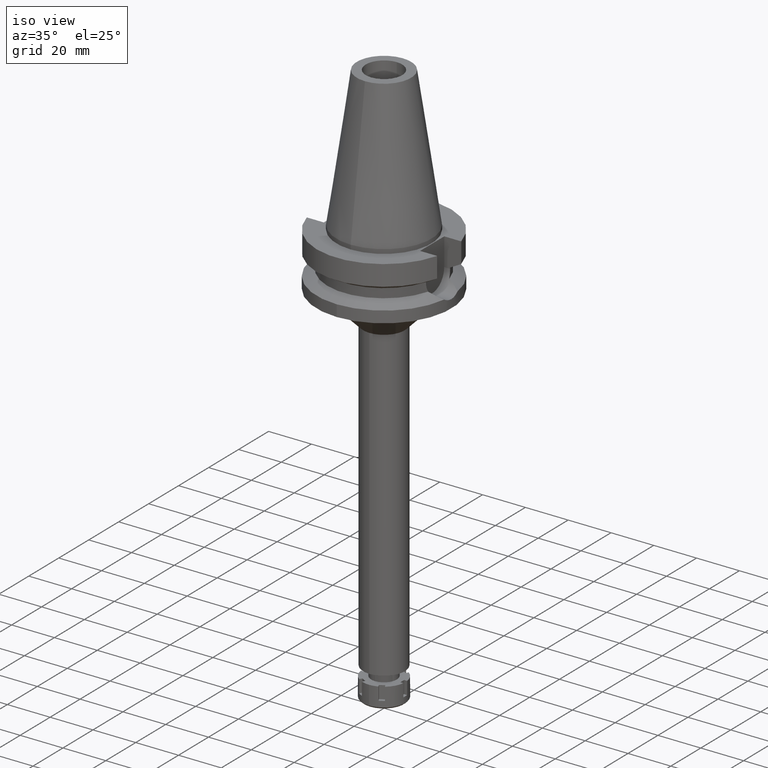
[diagram: clean part render]
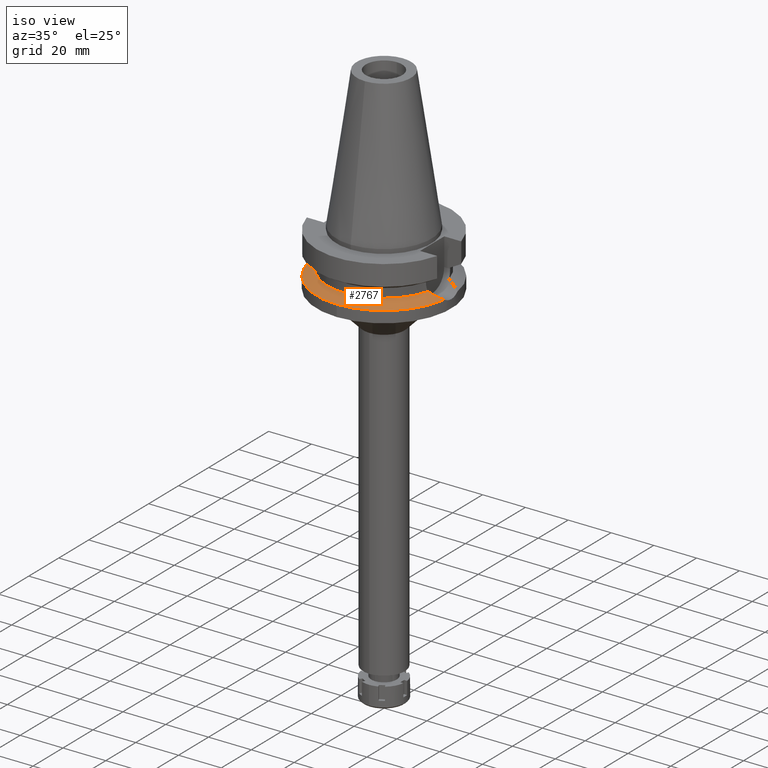
[diagram: same view with one face highlighted and labeled with its STEP entity id]
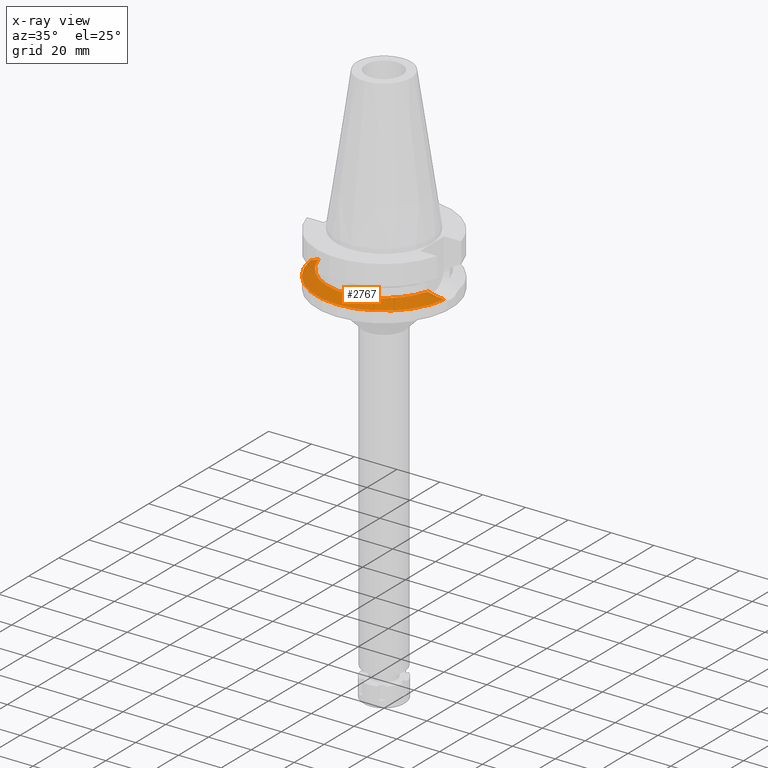
[diagram: x-ray of the same camera — body ghosted, the highlighted face saturated]
A machine part, iso view. The second image highlights one B-rep face of the part: STEP entity #2767.
The next image is the same camera in x-ray: the body ghosted, the highlighted face saturated — about 0% of this face is hidden behind the body in this view.
In plain terms, the highlighted conical surface has half-angle 60 deg.
Its self-contained STEP definition (entity closure, byte-faithful):
#28 = CARTESIAN_POINT ( 'NONE',  ( 0.0000000000000000000, 0.0000000000000000000, -21.63449434733000132 ) ) ;
#45 = CARTESIAN_POINT ( 'NONE',  ( 31.17899877608999759, -4.485536235554000051, -21.63449434733000132 ) ) ;
#73 = CARTESIAN_POINT ( 'NONE',  ( 27.74093948576911117, -6.365706700615440639, -19.88007435625031150 ) ) ;
#89 = CARTESIAN_POINT ( 'NONE',  ( -25.53175183775000079, -7.097862220092999941, -18.74774300138999905 ) ) ;
#98 = CARTESIAN_POINT ( 'NONE',  ( 28.58341892513499971, -6.005740685403422319, -20.31043183646768924 ) ) ;
#122 = CIRCLE ( 'NONE', #1537, 31.50000000000000000 ) ;
#134 = EDGE_CURVE ( 'NONE', #833, #932, #2467, .T. ) ;
#273 = DIRECTION ( 'NONE',  ( 0.0000000000000000000, 0.0000000000000000000, -1.000000000000000000 ) ) ;
#305 = CARTESIAN_POINT ( 'NONE',  ( 30.49088411962276979, -5.007587250156875669, -21.28417933154700847 ) ) ;
#312 = VERTEX_POINT ( 'NONE', #1288 ) ;
#327 = DIRECTION ( 'NONE',  ( 0.0000000000000000000, 0.0000000000000000000, -1.000000000000000000 ) ) ;
#335 = CARTESIAN_POINT ( 'NONE',  ( -28.84683157728543890, -5.883080815293735277, -20.44500309067752397 ) ) ;
#340 = CARTESIAN_POINT ( 'NONE',  ( 28.10479801467235816, -6.215750927540583781, -20.06598271555746038 ) ) ;
#373 = CARTESIAN_POINT ( 'NONE',  ( -30.82916329159230528, -4.750945448846933594, -21.45639521498078039 ) ) ;
#436 = VERTEX_POINT ( 'NONE', #2524 ) ;
#443 = EDGE_CURVE ( 'NONE', #436, #833, #122, .T. ) ;
#525 = CARTESIAN_POINT ( 'NONE',  ( 0.0000000000000000000, 0.0000000000000000000, -21.63449434733000132 ) ) ;
#629 = CARTESIAN_POINT ( 'NONE',  ( -31.17899877608999759, -4.485536235554000051, -21.63449434733000132 ) ) ;
#833 = VERTEX_POINT ( 'NONE', #1819 ) ;
#839 = DIRECTION ( 'NONE',  ( 0.0000000000000000000, -1.000000000000000000, 0.0000000000000000000 ) ) ;
#932 = VERTEX_POINT ( 'NONE', #2791 ) ;
#937 = AXIS2_PLACEMENT_3D ( 'NONE', #2796, #273, #1389 ) ;
#1014 = CARTESIAN_POINT ( 'NONE',  ( 0.0000000000000000000, 0.0000000000000000000, -18.74774300138999905 ) ) ;
#1035 = EDGE_LOOP ( 'NONE', ( #2422, #1142, #2221, #2682, #2173 ) ) ;
#1088 = EDGE_CURVE ( 'NONE', #312, #2313, #2988, .T. ) ;
#1142 = ORIENTED_EDGE ( 'NONE', *, *, #3320, .F. ) ;
#1288 = CARTESIAN_POINT ( 'NONE',  ( 25.53175183775000079, -7.097862220092999941, -18.74774300138999905 ) ) ;
#1345 = CIRCLE ( 'NONE', #2266, 26.50000000000000000 ) ;
#1389 = DIRECTION ( 'NONE',  ( 0.0000000000000000000, -1.000000000000000000, 0.0000000000000000000 ) ) ;
#1439 = CARTESIAN_POINT ( 'NONE',  ( 28.65351018439743669, -5.973548979029915884, -20.34623064578185492 ) ) ;
#1467 = CARTESIAN_POINT ( 'NONE',  ( -30.44184900763696433, -5.010708965176777774, -21.25913621480421156 ) ) ;
#1507 = CARTESIAN_POINT ( 'NONE',  ( -29.58289314094660938, -5.510291651499794163, -20.82091613802153773 ) ) ;
#1537 = AXIS2_PLACEMENT_3D ( 'NONE', #525, #3340, #839 ) ;
#1675 = FACE_OUTER_BOUND ( 'NONE', #1035, .T. ) ;
#1776 = CARTESIAN_POINT ( 'NONE',  ( 28.28299660096840284, -6.140056907602303937, -20.15700280452214699 ) ) ;
#1805 = CARTESIAN_POINT ( 'NONE',  ( -28.68477240512649473, -5.959075967299411580, -20.36221902285917551 ) ) ;
#1819 = CARTESIAN_POINT ( 'NONE',  ( -31.17899877608999759, -4.485536235554000051, -21.63449434733000132 ) ) ;
#1860 = DIRECTION ( 'NONE',  ( 0.0000000000000000000, -1.000000000000000000, 0.0000000000000000000 ) ) ;
#1968 = CARTESIAN_POINT ( 'NONE',  ( 28.48436626487483636, -6.050676484569721403, -20.25984357594837348 ) ) ;
#1994 = CARTESIAN_POINT ( 'NONE',  ( -29.05932363526802931, -5.780610789782616443, -20.55354638497300712 ) ) ;
#2001 = CARTESIAN_POINT ( 'NONE',  ( 25.53175183775000079, -7.097862220092999941, -18.74774300138999905 ) ) ;
#2013 = CARTESIAN_POINT ( 'NONE',  ( -26.71847924497051352, -6.771651191239353551, -19.35742115407575881 ) ) ;
#2042 = CARTESIAN_POINT ( 'NONE',  ( 28.62552031416941745, -5.986432209593348652, -20.33193478103255813 ) ) ;
#2126 = DIRECTION ( 'NONE',  ( 0.0000000000000000000, 0.0000000000000000000, 1.000000000000000000 ) ) ;
#2173 = ORIENTED_EDGE ( 'NONE', *, *, #134, .F. ) ;
#2221 = ORIENTED_EDGE ( 'NONE', *, *, #1088, .F. ) ;
#2266 = AXIS2_PLACEMENT_3D ( 'NONE', #1014, #2126, #1860 ) ;
#2311 = CARTESIAN_POINT ( 'NONE',  ( 26.70101074978961719, -6.750482868068909958, -19.34797651971101828 ) ) ;
#2313 = VERTEX_POINT ( 'NONE', #45 ) ;
#2343 = CARTESIAN_POINT ( 'NONE',  ( -29.80465938251750657, -5.387061091613871255, -20.93410802232746803 ) ) ;
#2422 = ORIENTED_EDGE ( 'NONE', *, *, #443, .F. ) ;
#2467 = B_SPLINE_CURVE_WITH_KNOTS ( 'NONE', 3,
 ( #629, #373, #1467, #2343, #1507, #2874, #1994, #335, #2608, #1805, #2930, #2566, #2857, #3158, #2013, #89 ),
 .UNSPECIFIED., .F., .F.,
 ( 4, 2, 2, 1, 1, 1, 1, 2, 2, 4 ),
 ( 0.0000000000000000000, 0.2500000000000037192, 0.3750000000000055511, 0.4375000000000059397, 0.4687500000000059397, 0.4843750000000067168, 0.4921875000000062172, 0.4960937500000062728, 0.5000000000000063283, 1.000000000000000000 ),
 .UNSPECIFIED. ) ;
#2524 = CARTESIAN_POINT ( 'NONE',  ( 0.0000000000000000000, -31.50000000000000000, -21.63449434733000132 ) ) ;
#2556 = DIRECTION ( 'NONE',  ( 0.9898094849552905306, -0.1423979757318985240, 0.0000000000000000000 ) ) ;
#2566 = CARTESIAN_POINT ( 'NONE',  ( -28.64584833433740485, -5.977059938606806178, -20.34233560255448481 ) ) ;
#2575 = CARTESIAN_POINT ( 'NONE',  ( 27.48841865808539353, -6.463769833912523133, -19.75097475927626078 ) ) ;
#2596 = EDGE_CURVE ( 'NONE', #932, #312, #1345, .T. ) ;
#2608 = CARTESIAN_POINT ( 'NONE',  ( -28.73904833191015129, -5.933827207429251516, -20.38994463208248575 ) ) ;
#2682 = ORIENTED_EDGE ( 'NONE', *, *, #2596, .F. ) ;
#2724 = CIRCLE ( 'NONE', #2781, 31.50000000000001421 ) ;
#2767 = ADVANCED_FACE ( 'NONE', ( #1675 ), #2942, .T. ) ;
#2781 = AXIS2_PLACEMENT_3D ( 'NONE', #28, #327, #2556 ) ;
#2791 = CARTESIAN_POINT ( 'NONE',  ( -25.53175183775000079, -7.097862220092999941, -18.74774300138999905 ) ) ;
#2796 = CARTESIAN_POINT ( 'NONE',  ( 0.0000000000000000000, 0.0000000000000000000, -20.19111867435999841 ) ) ;
#2857 = CARTESIAN_POINT ( 'NONE',  ( -28.63710692835713800, -5.981084864531645451, -20.33787027566886607 ) ) ;
#2863 = CARTESIAN_POINT ( 'NONE',  ( 26.13627824393289956, -6.931688270008681485, -19.05831688746398100 ) ) ;
#2874 = CARTESIAN_POINT ( 'NONE',  ( -29.23618922879365911, -5.691166485147458154, -20.64387755702575689 ) ) ;
#2899 = CARTESIAN_POINT ( 'NONE',  ( 28.66611843634503387, -5.967726794190562067, -20.35267043142050269 ) ) ;
#2930 = CARTESIAN_POINT ( 'NONE',  ( -28.66142894277007613, -5.969869954436079595, -20.35029457413170917 ) ) ;
#2942 = CONICAL_SURFACE ( 'NONE', #937, 29.00000000000000000, 1.047197551196400456 ) ;
#2988 = B_SPLINE_CURVE_WITH_KNOTS ( 'NONE', 3,
 ( #2001, #2863, #2311, #2575, #73, #340, #1776, #1968, #98, #2042, #1439, #2899, #3168, #305, #3128 ),
 .UNSPECIFIED., .F., .F.,
 ( 4, 2, 2, 1, 1, 1, 2, 2, 4 ),
 ( 0.0000000000000000000, 0.2500000000000191513, 0.3750000000000283662, 0.4375000000000320854, 0.4687500000000335287, 0.4843750000000344724, 0.4921875000000346390, 0.5000000000000347500, 1.000000000000000000 ),
 .UNSPECIFIED. ) ;
#3128 = CARTESIAN_POINT ( 'NONE',  ( 31.17899877608999759, -4.485536235554000051, -21.63449434733000132 ) ) ;
#3158 = CARTESIAN_POINT ( 'NONE',  ( -27.75130872425789974, -6.388213215384713983, -19.88538326876645712 ) ) ;
#3168 = CARTESIAN_POINT ( 'NONE',  ( 29.65834568457046316, -5.507703172127908609, -20.85947314836392508 ) ) ;
#3320 = EDGE_CURVE ( 'NONE', #2313, #436, #2724, .T. ) ;
#3340 = DIRECTION ( 'NONE',  ( 0.0000000000000000000, 0.0000000000000000000, -1.000000000000000000 ) ) ;